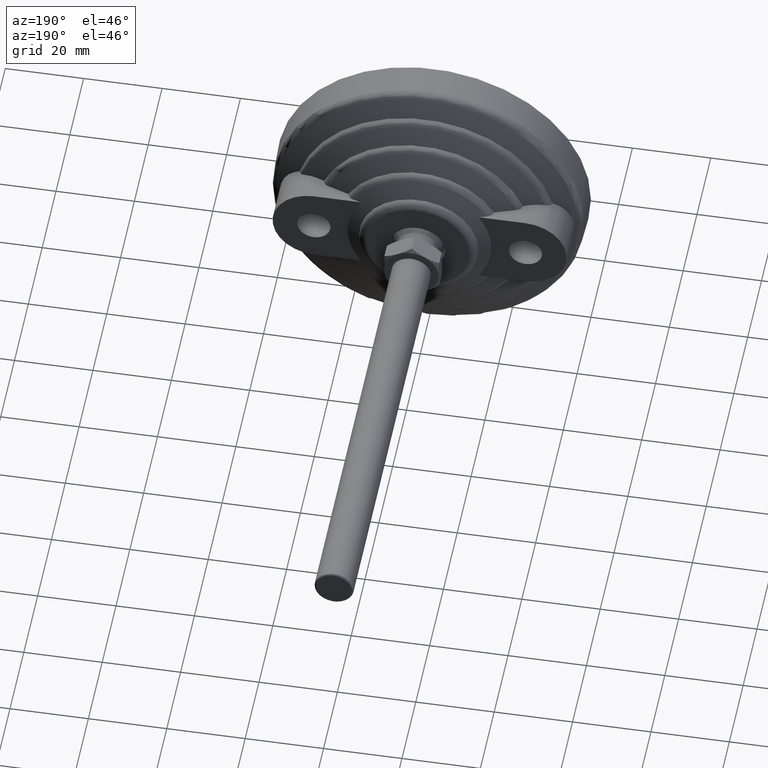
[diagram: clean part render]
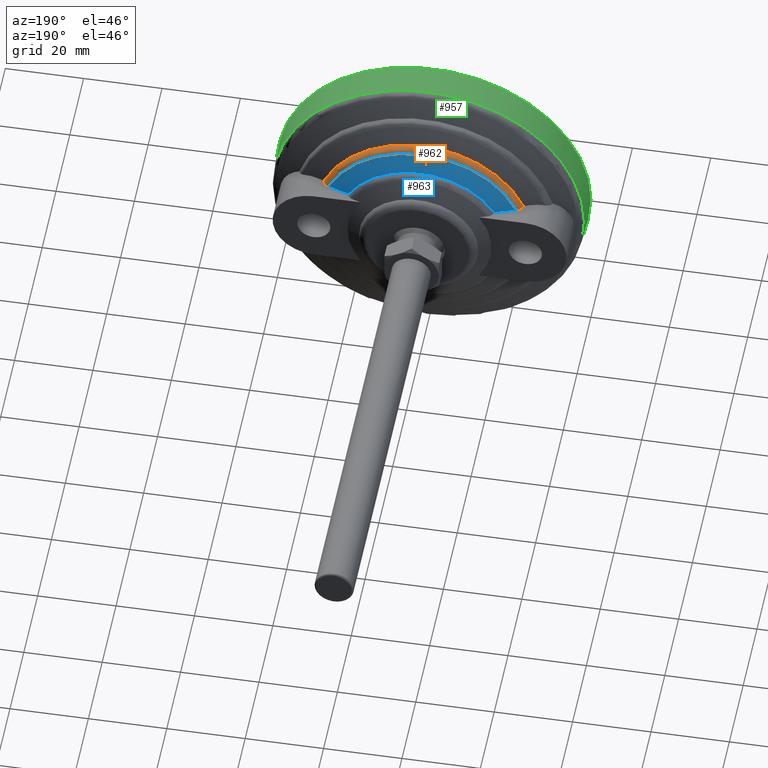
[diagram: same view with three faces highlighted in distinct colors, each labeled with its STEP entity id]
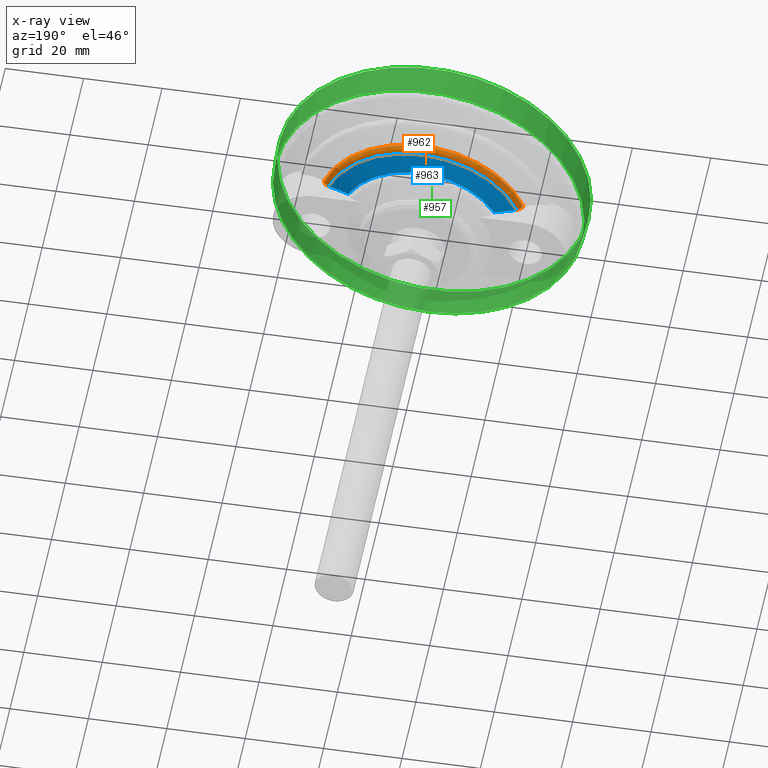
[diagram: x-ray of the same camera — body ghosted, the three highlighted faces saturated]
A machine part, auxiliary view with three faces highlighted in distinct colors.
The next image is the same camera in x-ray (body ghosted, the three faces saturated) — at least one of them is partly hidden behind the body in this view.
Their STEP definitions:

[orange] entity #962 — the highlighted toroidal blend (fillet) surface has major radius 25.4984 mm and minor (blend) radius 2.02 mm.
#32=TOROIDAL_SURFACE('',#1120,25.4983965238862,2.02000000000133);
#125=B_SPLINE_CURVE_WITH_KNOTS('',3,(#1638,#1639,#1640,#1641,#1642,#1643,
#1644,#1645,#1646,#1647),.UNSPECIFIED.,.F.,.F.,(4,2,2,2,4),(1.01782753286633,
1.02732710549812,1.10729276006222,1.18312901926639,1.23466246531093),
 .UNSPECIFIED.);
#128=B_SPLINE_CURVE_WITH_KNOTS('',3,(#1684,#1685,#1686,#1687,#1688,#1689,
#1690,#1691,#1692,#1693),.UNSPECIFIED.,.F.,.F.,(4,2,2,2,4),(0.0212814232083536,
0.0728148692528918,0.148651128457057,0.228616783021157,0.238116355652946),
 .UNSPECIFIED.);
#161=FACE_OUTER_BOUND('',#218,.T.);
#218=EDGE_LOOP('',(#782,#783,#784,#785));
#341=CIRCLE('',#1119,27.50624303865);
#342=CIRCLE('',#1121,26.213089996915);
#408=VERTEX_POINT('',#1633);
#409=VERTEX_POINT('',#1637);
#414=VERTEX_POINT('',#1679);
#415=VERTEX_POINT('',#1683);
#517=EDGE_CURVE('',#409,#408,#125,.T.);
#523=EDGE_CURVE('',#415,#414,#128,.T.);
#563=EDGE_CURVE('',#408,#415,#341,.T.);
#564=EDGE_CURVE('',#409,#414,#342,.T.);
#782=ORIENTED_EDGE('',*,*,#523,.T.);
#783=ORIENTED_EDGE('',*,*,#564,.F.);
#784=ORIENTED_EDGE('',*,*,#517,.T.);
#785=ORIENTED_EDGE('',*,*,#563,.T.);
#962=ADVANCED_FACE('',(#161),#32,.T.);
#1119=AXIS2_PLACEMENT_3D('',#1843,#1330,#1331);
#1120=AXIS2_PLACEMENT_3D('',#1844,#1332,#1333);
#1121=AXIS2_PLACEMENT_3D('',#1845,#1334,#1335);
#1330=DIRECTION('center_axis',(0.,1.,0.));
#1331=DIRECTION('ref_axis',(-1.,0.,0.));
#1332=DIRECTION('center_axis',(0.,1.,0.));
#1333=DIRECTION('ref_axis',(0.,0.,1.));
#1334=DIRECTION('center_axis',(0.,1.,0.));
#1335=DIRECTION('ref_axis',(-1.,0.,0.));
#1633=CARTESIAN_POINT('',(-25.4232847228929,15.187883375214,10.5));
#1637=CARTESIAN_POINT('',(-24.0182448814722,16.855973555576,10.5));
#1638=CARTESIAN_POINT('Ctrl Pts',(-24.0182448814722,16.855973555576,10.5));
#1639=CARTESIAN_POINT('Ctrl Pts',(-24.0492398296205,16.8452306143917,10.5));
#1640=CARTESIAN_POINT('Ctrl Pts',(-24.0795387046592,16.8339914687044,10.5));
#1641=CARTESIAN_POINT('Ctrl Pts',(-24.356979485335,16.7246285628039,10.5));
#1642=CARTESIAN_POINT('Ctrl Pts',(-24.6279442031493,16.5546573409524,10.5));
#1643=CARTESIAN_POINT('Ctrl Pts',(-25.0040114825102,16.1964854011848,10.5));
#1644=CARTESIAN_POINT('Ctrl Pts',(-25.1794581476383,15.9490249416024,10.5));
#1645=CARTESIAN_POINT('Ctrl Pts',(-25.3482535544129,15.559455781093,10.5));
#1646=CARTESIAN_POINT('Ctrl Pts',(-25.4014496687382,15.3710297364029,10.5));
#1647=CARTESIAN_POINT('Ctrl Pts',(-25.4232847228929,15.187883375214,10.5));
#1679=CARTESIAN_POINT('',(24.0182448814722,16.855973555576,10.5));
#1683=CARTESIAN_POINT('',(25.4232847228929,15.187883375214,10.5));
#1684=CARTESIAN_POINT('Ctrl Pts',(25.4232847228929,15.187883375214,10.5));
#1685=CARTESIAN_POINT('Ctrl Pts',(25.4014496687382,15.3710297364029,10.5));
#1686=CARTESIAN_POINT('Ctrl Pts',(25.3482535544129,15.559455781093,10.5));
#1687=CARTESIAN_POINT('Ctrl Pts',(25.1794581476383,15.9490249416024,10.5));
#1688=CARTESIAN_POINT('Ctrl Pts',(25.0040114825102,16.1964854011848,10.5));
#1689=CARTESIAN_POINT('Ctrl Pts',(24.6279442031493,16.5546573409524,10.5));
#1690=CARTESIAN_POINT('Ctrl Pts',(24.356979485335,16.7246285628039,10.5));
#1691=CARTESIAN_POINT('Ctrl Pts',(24.0795387046592,16.8339914687044,10.5));
#1692=CARTESIAN_POINT('Ctrl Pts',(24.0492398296205,16.8452306143917,10.5));
#1693=CARTESIAN_POINT('Ctrl Pts',(24.0182448814722,16.855973555576,10.5));
#1843=CARTESIAN_POINT('Origin',(0.,15.187883375214,0.));
#1844=CARTESIAN_POINT('Origin',(0.,14.9666315432301,0.));
#1845=CARTESIAN_POINT('Origin',(0.,16.855973555576,0.));

[blue] entity #963 — the highlighted conical surface has half-angle 69.278 deg.
#42=CONICAL_SURFACE('',#1122,23.790972958514,1.20912995397196);
#61=(
BOUNDED_CURVE()
B_SPLINE_CURVE(2,(#1649,#1650,#1651),.UNSPECIFIED.,.F.,.F.)
B_SPLINE_CURVE_WITH_KNOTS((3,3),(0.,0.570917621195301),.UNSPECIFIED.)
CURVE()
GEOMETRIC_REPRESENTATION_ITEM()
RATIONAL_B_SPLINE_CURVE((1.,1.00651975650085,1.))
REPRESENTATION_ITEM('')
);
#63=(
BOUNDED_CURVE()
B_SPLINE_CURVE(2,(#1680,#1681,#1682),.UNSPECIFIED.,.F.,.F.)
B_SPLINE_CURVE_WITH_KNOTS((3,3),(0.,0.570917621195301),.UNSPECIFIED.)
CURVE()
GEOMETRIC_REPRESENTATION_ITEM()
RATIONAL_B_SPLINE_CURVE((1.,1.00651975650085,1.))
REPRESENTATION_ITEM('')
);
#162=FACE_OUTER_BOUND('',#219,.T.);
#219=EDGE_LOOP('',(#786,#787,#788,#789));
#342=CIRCLE('',#1121,26.213089996915);
#343=CIRCLE('',#1123,21.368855920113);
#409=VERTEX_POINT('',#1637);
#410=VERTEX_POINT('',#1648);
#413=VERTEX_POINT('',#1668);
#414=VERTEX_POINT('',#1679);
#518=EDGE_CURVE('',#410,#409,#61,.T.);
#522=EDGE_CURVE('',#414,#413,#63,.T.);
#564=EDGE_CURVE('',#409,#414,#342,.T.);
#565=EDGE_CURVE('',#410,#413,#343,.T.);
#786=ORIENTED_EDGE('',*,*,#522,.T.);
#787=ORIENTED_EDGE('',*,*,#565,.F.);
#788=ORIENTED_EDGE('',*,*,#518,.T.);
#789=ORIENTED_EDGE('',*,*,#564,.T.);
#963=ADVANCED_FACE('',(#162),#42,.T.);
#1121=AXIS2_PLACEMENT_3D('',#1845,#1334,#1335);
#1122=AXIS2_PLACEMENT_3D('',#1846,#1336,#1337);
#1123=AXIS2_PLACEMENT_3D('',#1847,#1338,#1339);
#1334=DIRECTION('center_axis',(0.,1.,0.));
#1335=DIRECTION('ref_axis',(-1.,0.,0.));
#1336=DIRECTION('center_axis',(0.,-1.,0.));
#1337=DIRECTION('ref_axis',(-1.,0.,0.));
#1338=DIRECTION('center_axis',(0.,1.,0.));
#1339=DIRECTION('ref_axis',(-1.,0.,0.));
#1637=CARTESIAN_POINT('',(-24.0182448814722,16.855973555576,10.5));
#1648=CARTESIAN_POINT('',(-18.6112332566799,18.688578845057,10.5));
#1649=CARTESIAN_POINT('Ctrl Pts',(-18.6112332566799,18.688578845057,10.5));
#1650=CARTESIAN_POINT('Ctrl Pts',(-21.0394999057595,17.8884976336604,10.5));
#1651=CARTESIAN_POINT('Ctrl Pts',(-24.0182448814722,16.855973555576,10.5));
#1668=CARTESIAN_POINT('',(18.6112332566799,18.688578845057,10.5));
#1679=CARTESIAN_POINT('',(24.0182448814722,16.855973555576,10.5));
#1680=CARTESIAN_POINT('Ctrl Pts',(24.0182448814722,16.855973555576,10.5));
#1681=CARTESIAN_POINT('Ctrl Pts',(21.0394999057595,17.8884976336604,10.5));
#1682=CARTESIAN_POINT('Ctrl Pts',(18.6112332566799,18.688578845057,10.5));
#1845=CARTESIAN_POINT('Origin',(0.,16.855973555576,0.));
#1846=CARTESIAN_POINT('Origin',(0.,17.7722762003165,0.));
#1847=CARTESIAN_POINT('Origin',(0.,18.688578845057,0.));

[green] entity #957 — the highlighted conical surface has half-angle 1.939 deg.
#39=CONICAL_SURFACE('',#1103,39.865665237939,0.0338437678790746);
#156=FACE_OUTER_BOUND('',#213,.T.);
#213=EDGE_LOOP('',(#747,#748,#749,#750,#751,#752,#753));
#268=LINE('',#1825,#291);
#291=VECTOR('',#1304,39.865665237939);
#330=CIRCLE('',#1104,39.731330475878);
#331=CIRCLE('',#1105,39.731330475878);
#332=CIRCLE('',#1106,39.731330475878);
#333=CIRCLE('',#1107,40.);
#334=CIRCLE('',#1108,40.);
#429=VERTEX_POINT('',#1818);
#430=VERTEX_POINT('',#1819);
#431=VERTEX_POINT('',#1821);
#432=VERTEX_POINT('',#1824);
#433=VERTEX_POINT('',#1826);
#550=EDGE_CURVE('',#429,#430,#330,.T.);
#551=EDGE_CURVE('',#431,#429,#331,.T.);
#552=EDGE_CURVE('',#430,#431,#332,.T.);
#553=EDGE_CURVE('',#430,#432,#268,.T.);
#554=EDGE_CURVE('',#432,#433,#333,.T.);
#555=EDGE_CURVE('',#433,#432,#334,.T.);
#747=ORIENTED_EDGE('',*,*,#550,.F.);
#748=ORIENTED_EDGE('',*,*,#551,.F.);
#749=ORIENTED_EDGE('',*,*,#552,.F.);
#750=ORIENTED_EDGE('',*,*,#553,.T.);
#751=ORIENTED_EDGE('',*,*,#554,.T.);
#752=ORIENTED_EDGE('',*,*,#555,.T.);
#753=ORIENTED_EDGE('',*,*,#553,.F.);
#957=ADVANCED_FACE('',(#156),#39,.T.);
#1103=AXIS2_PLACEMENT_3D('',#1817,#1296,#1297);
#1104=AXIS2_PLACEMENT_3D('',#1820,#1298,#1299);
#1105=AXIS2_PLACEMENT_3D('',#1822,#1300,#1301);
#1106=AXIS2_PLACEMENT_3D('',#1823,#1302,#1303);
#1107=AXIS2_PLACEMENT_3D('',#1827,#1305,#1306);
#1108=AXIS2_PLACEMENT_3D('',#1828,#1307,#1308);
#1296=DIRECTION('center_axis',(0.,-1.,0.));
#1297=DIRECTION('ref_axis',(-1.,0.,0.));
#1298=DIRECTION('center_axis',(0.,1.,0.));
#1299=DIRECTION('ref_axis',(-1.,0.,0.));
#1300=DIRECTION('center_axis',(0.,1.,0.));
#1301=DIRECTION('ref_axis',(-1.,0.,0.));
#1302=DIRECTION('center_axis',(0.,1.,0.));
#1303=DIRECTION('ref_axis',(-1.,0.,0.));
#1304=DIRECTION('',(0.0338373074702642,-0.999427354350061,-4.14387502852239E-18));
#1305=DIRECTION('center_axis',(0.,1.,0.));
#1306=DIRECTION('ref_axis',(-1.,0.,0.));
#1307=DIRECTION('center_axis',(0.,1.,0.));
#1308=DIRECTION('ref_axis',(-1.,0.,0.));
#1817=CARTESIAN_POINT('Origin',(0.,3.96774583680605,0.));
#1818=CARTESIAN_POINT('',(-39.731330475878,7.9354916736121,0.));
#1819=CARTESIAN_POINT('',(39.731330475878,7.9354916736121,-4.86568466931497E-15));
#1820=CARTESIAN_POINT('Origin',(0.,7.9354916736121,0.));
#1821=CARTESIAN_POINT('',(-4.86568466931497E-15,7.9354916736121,-39.731330475878));
#1822=CARTESIAN_POINT('Origin',(0.,7.9354916736121,0.));
#1823=CARTESIAN_POINT('Origin',(0.,7.9354916736121,0.));
#1824=CARTESIAN_POINT('',(40.,-5.55111512312578E-16,-4.89858719658941E-15));
#1825=CARTESIAN_POINT('',(39.865665237939,3.96774583680605,-4.88213593295219E-15));
#1826=CARTESIAN_POINT('',(-40.,0.,0.));
#1827=CARTESIAN_POINT('Origin',(0.,0.,0.));
#1828=CARTESIAN_POINT('Origin',(0.,0.,0.));